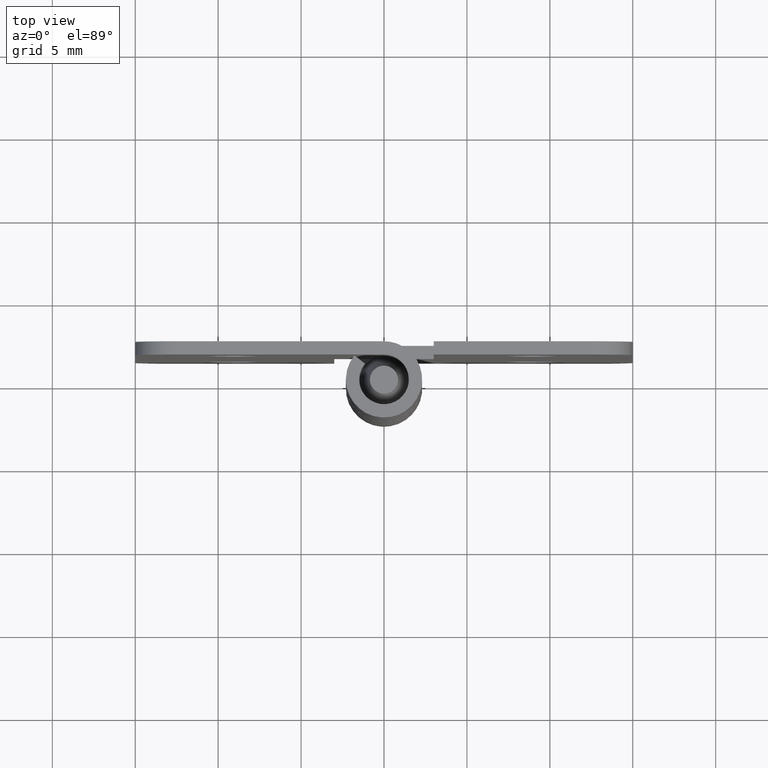
[diagram: clean part render]
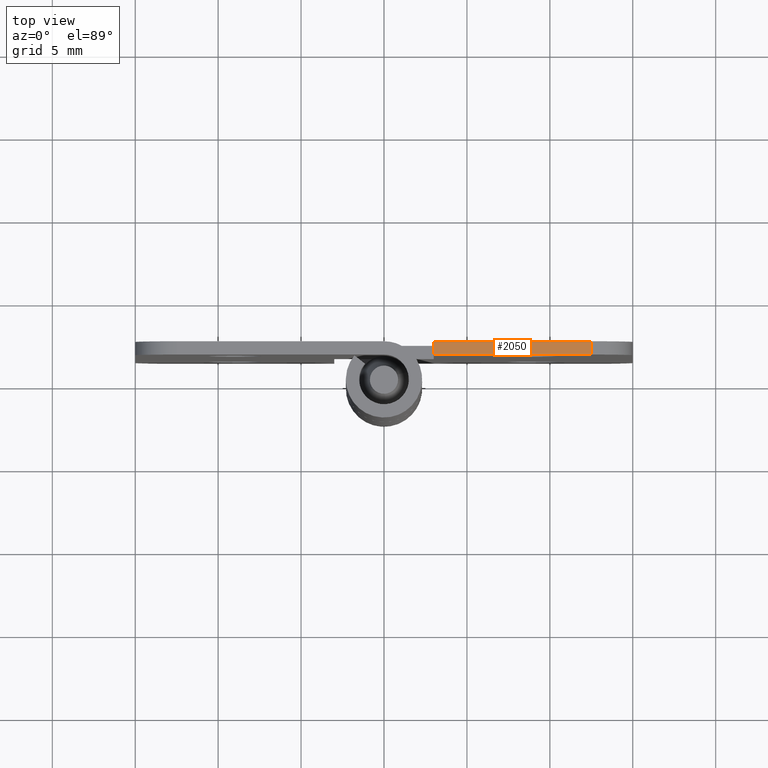
[diagram: same view with one face highlighted and labeled with its STEP entity id]
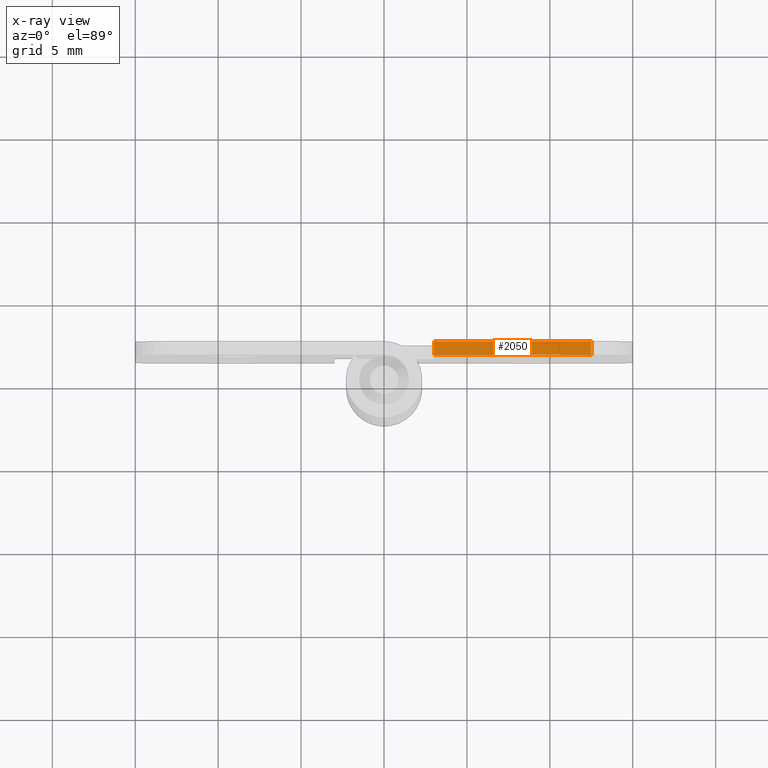
[diagram: x-ray of the same camera — body ghosted, the highlighted face saturated]
A machine part, top view. The second image highlights one B-rep face of the part: STEP entity #2050.
The next image is the same camera in x-ray: the body ghosted, the highlighted face saturated — about 0% of this face is hidden behind the body in this view.
In plain terms, the highlighted face is a freeform B-spline surface patch.
Its self-contained STEP definition (entity closure, byte-faithful):
#1781=CARTESIAN_POINT('',(12.500000000000000,1.499999999999986,31.999991999999889));
#1782=VERTEX_POINT('',#1781);
#1805=CARTESIAN_POINT('',(12.500000000000000,2.299999000000000,31.999991999999889));
#1806=VERTEX_POINT('',#1805);
#1820=CARTESIAN_POINT('',(12.500000000000000,2.299999000000000,31.999991999999889));
#1821=CARTESIAN_POINT('',(12.500000000000000,1.499999999999986,31.999991999999889));
#1822=QUASI_UNIFORM_CURVE('',1,(#1820,#1821),.UNSPECIFIED.,.F.,.U.);
#1823=EDGE_CURVE('',#1806,#1782,#1822,.T.);
#1919=CARTESIAN_POINT('',(3.000000000000200,1.499999999999946,31.999991999999889));
#1920=VERTEX_POINT('',#1919);
#1926=CARTESIAN_POINT('',(3.000000000000200,2.299999000000000,31.999991999999889));
#1927=VERTEX_POINT('',#1926);
#1928=CARTESIAN_POINT('',(3.000000000000200,1.499999999999946,31.999991999999889));
#1929=CARTESIAN_POINT('',(3.000000000000200,2.299999000000000,31.999991999999889));
#1930=QUASI_UNIFORM_CURVE('',1,(#1928,#1929),.UNSPECIFIED.,.F.,.U.);
#1931=EDGE_CURVE('',#1920,#1927,#1930,.T.);
#2031=CARTESIAN_POINT('',(12.974524981587150,2.339958948499450,31.999991999999889));
#2032=CARTESIAN_POINT('',(2.525474763603197,2.339958948499450,31.999991999999889));
#2033=CARTESIAN_POINT('',(12.974524981587150,1.460040030042852,31.999991999999889));
#2034=CARTESIAN_POINT('',(2.525474763603197,1.460040030042852,31.999991999999889));
#2035=B_SPLINE_SURFACE_WITH_KNOTS('',1,1,((#2031,#2033),(#2032,#2034)),.UNSPECIFIED.,.F.,.F.,.U.,(2,2),(2,2),(0.0,10.449050217983951),(0.041708334948495,0.958291687403247),.UNSPECIFIED.);
#2036=CARTESIAN_POINT('',(12.500000000000000,2.299999000000000,31.999991999999889));
#2037=CARTESIAN_POINT('',(3.000000000000200,2.299999000000000,31.999991999999889));
#2038=QUASI_UNIFORM_CURVE('',1,(#2036,#2037),.UNSPECIFIED.,.F.,.U.);
#2039=EDGE_CURVE('',#1806,#1927,#2038,.T.);
#2040=ORIENTED_EDGE('',*,*,#2039,.T.);
#2041=ORIENTED_EDGE('',*,*,#1931,.F.);
#2042=CARTESIAN_POINT('',(3.000000000000200,1.499999999999946,31.999991999999889));
#2043=CARTESIAN_POINT('',(12.500000000000000,1.499999999999986,31.999991999999889));
#2044=QUASI_UNIFORM_CURVE('',1,(#2042,#2043),.UNSPECIFIED.,.F.,.U.);
#2045=EDGE_CURVE('',#1920,#1782,#2044,.T.);
#2046=ORIENTED_EDGE('',*,*,#2045,.T.);
#2047=ORIENTED_EDGE('',*,*,#1823,.F.);
#2048=EDGE_LOOP('',(#2040,#2041,#2046,#2047));
#2049=FACE_OUTER_BOUND('',#2048,.T.);
#2050=ADVANCED_FACE('',(#2049),#2035,.T.);